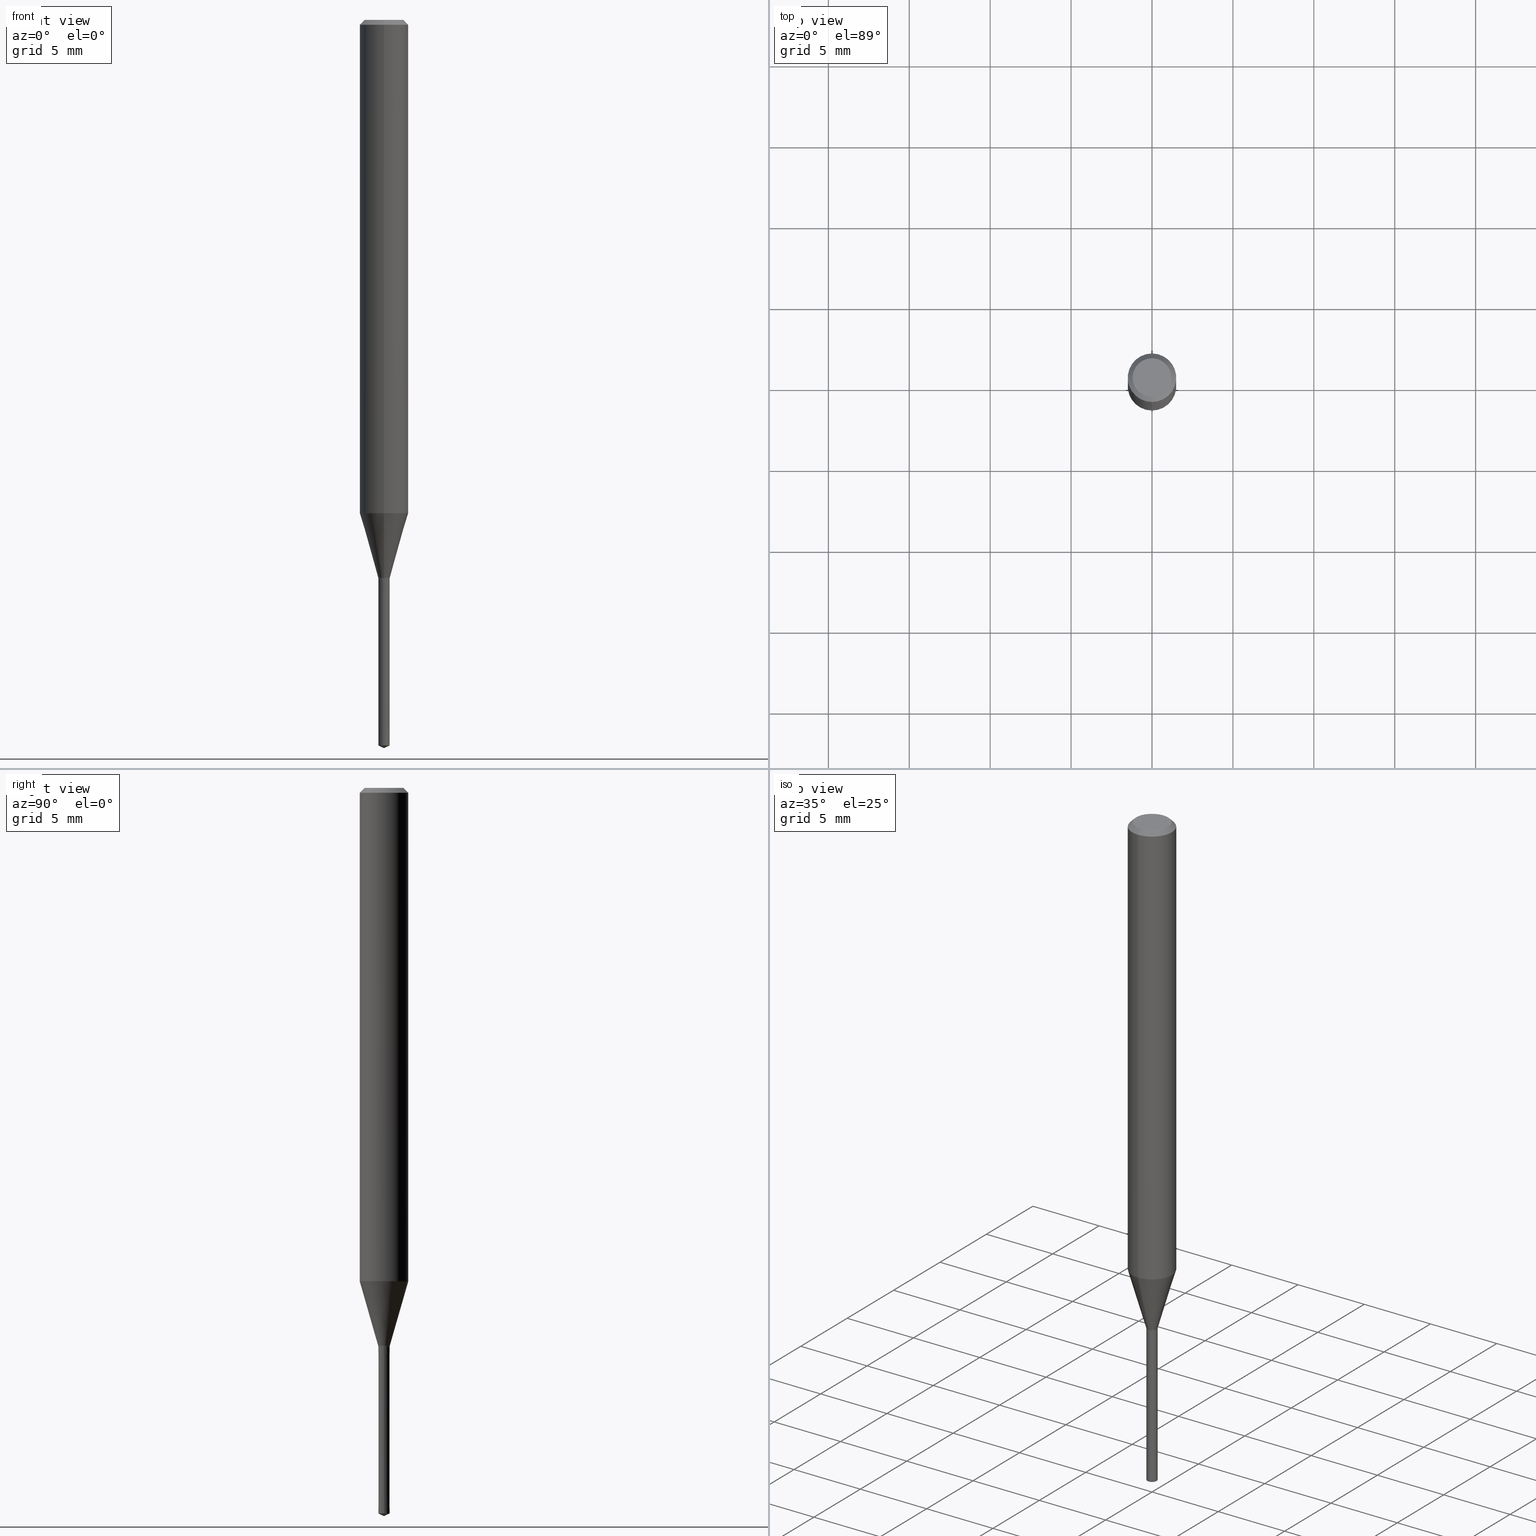
[diagram: canonical four-view strip — front | top / right | iso, engineering-drawing reading convention]
A machine part, canonical four-view strip (front | top / right | iso — engineering-drawing reading convention). The complete STEP part file that produces these views, byte-faithful:
ISO-10303-21;
HEADER;
FILE_DESCRIPTION(('no description'),'unknown implementation level');
FILE_NAME('UTDLX2070-105-Huellk.stp','  ',('CIMSOURCE GmbH'),('CADClick - KiM GmbH - www.kimweb.de'),'unknown preprocess','ACIS','unknown authorization');
FILE_SCHEMA(('automotive_design'));
ENDSEC;
DATA;
#1=MECHANICAL_DESIGN_GEOMETRIC_PRESENTATION_REPRESENTATION(' ',(#14,#15,#16,#17,#18,#19,#20,#21,#22,#23,#24,#25,#26,#27,#28,#29,#30,#31,#32,#33,#34,#35,#36,#37,#38,#39,#40,#41,#42,#43,#44,#45,#46,#47,#48,#49,#50,#51,#52,#53,#54,#55,#56,#57,#58,#59,#60,#61,#62,#63,#64,#65,#66,#67,#68,#69,#70,#71),#10);
#2=PRODUCT_DEFINITION_CONTEXT('',#72,'design');
#3=APPLICATION_PROTOCOL_DEFINITION('INTERNATIONAL STANDARD','automotive_design',1994,#72);
#4=PRODUCT_CATEGORY_RELATIONSHIP('NONE','NONE',#73,#74);
#5=SHAPE_DEFINITION_REPRESENTATION(#75,#76);
#6=PRODUCT_DEFINITION_CONTEXT('',#77,'design');
#7=APPLICATION_PROTOCOL_DEFINITION('INTERNATIONAL STANDARD','automotive_design',1994,#77);
#8=PRODUCT_CATEGORY_RELATIONSHIP('NONE','NONE',#78,#79);
#9=SHAPE_DEFINITION_REPRESENTATION(#80,#81);
#10= (GEOMETRIC_REPRESENTATION_CONTEXT(3)GLOBAL_UNCERTAINTY_ASSIGNED_CONTEXT((#84))GLOBAL_UNIT_ASSIGNED_CONTEXT((#86,#87,#88))REPRESENTATION_CONTEXT('NONE','WORKSPACE'));
#14=STYLED_ITEM('',(#90),#91);
#15=STYLED_ITEM('',(#92),#93);
#16=STYLED_ITEM('',(#94),#95);
#17=STYLED_ITEM('',(#96),#97);
#18=STYLED_ITEM('',(#98),#99);
#19=STYLED_ITEM('',(#100),#101);
#20=STYLED_ITEM('',(#102),#103);
#21=STYLED_ITEM('',(#104),#105);
#22=STYLED_ITEM('',(#106),#107);
#23=STYLED_ITEM('',(#108),#109);
#24=STYLED_ITEM('',(#110),#111);
#25=STYLED_ITEM('',(#112),#113);
#26=STYLED_ITEM('',(#114),#115);
#27=STYLED_ITEM('',(#116),#117);
#28=STYLED_ITEM('',(#118),#119);
#29=STYLED_ITEM('',(#120),#121);
#30=STYLED_ITEM('',(#122),#123);
#31=STYLED_ITEM('',(#124),#125);
#32=STYLED_ITEM('',(#126),#127);
#33=STYLED_ITEM('',(#128),#129);
#34=STYLED_ITEM('',(#130),#131);
#35=STYLED_ITEM('',(#132),#133);
#36=STYLED_ITEM('',(#134),#135);
#37=STYLED_ITEM('',(#136),#137);
#38=STYLED_ITEM('',(#138),#139);
#39=STYLED_ITEM('',(#140),#141);
#40=STYLED_ITEM('',(#142),#143);
#41=STYLED_ITEM('',(#144),#145);
#42=STYLED_ITEM('',(#146),#147);
#43=STYLED_ITEM('',(#148),#149);
#44=STYLED_ITEM('',(#150),#151);
#45=STYLED_ITEM('',(#152),#153);
#46=STYLED_ITEM('',(#154),#155);
#47=STYLED_ITEM('',(#156),#157);
#48=STYLED_ITEM('',(#158),#159);
#49=STYLED_ITEM('',(#160),#161);
#50=STYLED_ITEM('',(#162),#163);
#51=STYLED_ITEM('',(#164),#165);
#52=STYLED_ITEM('',(#166),#167);
#53=STYLED_ITEM('',(#168),#169);
#54=STYLED_ITEM('',(#170),#171);
#55=STYLED_ITEM('',(#172),#173);
#56=STYLED_ITEM('',(#174),#175);
#57=STYLED_ITEM('',(#176),#177);
#58=STYLED_ITEM('',(#178),#179);
#59=STYLED_ITEM('',(#180),#181);
#60=STYLED_ITEM('',(#182),#183);
#61=STYLED_ITEM('',(#184),#185);
#62=STYLED_ITEM('',(#186),#187);
#63=STYLED_ITEM('',(#188),#189);
#64=STYLED_ITEM('',(#190),#191);
#65=STYLED_ITEM('',(#192),#193);
#66=STYLED_ITEM('',(#194),#195);
#67=STYLED_ITEM('',(#196),#197);
#68=STYLED_ITEM('',(#198),#199);
#69=STYLED_ITEM('',(#200),#201);
#70=STYLED_ITEM('',(#202),#203);
#71=STYLED_ITEM('',(#204),#205);
#72=APPLICATION_CONTEXT(' ');
#73=PRODUCT_CATEGORY('part','NONE');
#74=PRODUCT_RELATED_PRODUCT_CATEGORY('detail',' ',(#206));
#75=PRODUCT_DEFINITION_SHAPE('NONE','NONE',#207);
#76=ADVANCED_BREP_SHAPE_REPRESENTATION('1',(#205,#208),#10);
#77=APPLICATION_CONTEXT(' ');
#78=PRODUCT_CATEGORY('part','NONE');
#79=PRODUCT_RELATED_PRODUCT_CATEGORY('detail',' ',(#209));
#80=PRODUCT_DEFINITION_SHAPE('NONE','NONE',#210);
#81=ADVANCED_BREP_SHAPE_REPRESENTATION('2',(#99,#211),#10);
#84=UNCERTAINTY_MEASURE_WITH_UNIT(LENGTH_MEASURE(1.0E-006),#86,'','');
#86= (CONVERSION_BASED_UNIT('MILLIMETRE',#214)LENGTH_UNIT()NAMED_UNIT(#217));
#87= (NAMED_UNIT(#219)PLANE_ANGLE_UNIT()SI_UNIT($,.RADIAN.));
#88= (NAMED_UNIT(#219)SOLID_ANGLE_UNIT()SI_UNIT($,.STERADIAN.));
#90=PRESENTATION_STYLE_ASSIGNMENT((#225));
#91=VERTEX_POINT('',#226);
#92=PRESENTATION_STYLE_ASSIGNMENT((#227));
#93=EDGE_CURVE('',#203,#95,#228,.T.);
#94=PRESENTATION_STYLE_ASSIGNMENT((#229));
#95=VERTEX_POINT('',#230);
#96=PRESENTATION_STYLE_ASSIGNMENT((#231));
#97=ADVANCED_FACE('',(#232),#233,.T.);
#98=PRESENTATION_STYLE_ASSIGNMENT((#234));
#99=MANIFOLD_SOLID_BREP('2',#235);
#100=PRESENTATION_STYLE_ASSIGNMENT((#236));
#101=EDGE_CURVE('',#143,#167,#237,.T.);
#102=PRESENTATION_STYLE_ASSIGNMENT((#238));
#103=VERTEX_POINT('',#239);
#104=PRESENTATION_STYLE_ASSIGNMENT((#240));
#105=ADVANCED_FACE('',(#241),#242,.T.);
#106=PRESENTATION_STYLE_ASSIGNMENT((#243));
#107=ADVANCED_FACE('',(#244),#245,.T.);
#108=PRESENTATION_STYLE_ASSIGNMENT((#246));
#109=ADVANCED_FACE('',(#247),#248,.T.);
#110=PRESENTATION_STYLE_ASSIGNMENT((#249));
#111=VERTEX_POINT('',#250);
#112=PRESENTATION_STYLE_ASSIGNMENT((#251));
#113=EDGE_CURVE('',#95,#203,#252,.T.);
#114=PRESENTATION_STYLE_ASSIGNMENT((#253));
#115=ADVANCED_FACE('',(#254),#255,.T.);
#116=PRESENTATION_STYLE_ASSIGNMENT((#256));
#117=EDGE_CURVE('',#103,#181,#257,.T.);
#118=PRESENTATION_STYLE_ASSIGNMENT((#258));
#119=ADVANCED_FACE('',(#259),#260,.T.);
#120=PRESENTATION_STYLE_ASSIGNMENT((#261));
#121=EDGE_CURVE('',#103,#183,#262,.T.);
#122=PRESENTATION_STYLE_ASSIGNMENT((#263));
#123=EDGE_CURVE('',#183,#103,#264,.T.);
#124=PRESENTATION_STYLE_ASSIGNMENT((#265));
#125=EDGE_CURVE('',#179,#155,#266,.T.);
#126=PRESENTATION_STYLE_ASSIGNMENT((#267));
#127=EDGE_CURVE('',#181,#165,#268,.T.);
#128=PRESENTATION_STYLE_ASSIGNMENT((#269));
#129=EDGE_CURVE('',#203,#179,#270,.T.);
#130=PRESENTATION_STYLE_ASSIGNMENT((#271));
#131=ADVANCED_FACE('',(#272),#273,.T.);
#132=PRESENTATION_STYLE_ASSIGNMENT((#274));
#133=VERTEX_POINT('',#275);
#134=PRESENTATION_STYLE_ASSIGNMENT((#276));
#135=EDGE_CURVE('',#173,#111,#277,.T.);
#136=PRESENTATION_STYLE_ASSIGNMENT((#278));
#137=EDGE_CURVE('',#111,#143,#279,.T.);
#138=PRESENTATION_STYLE_ASSIGNMENT((#280));
#139=ADVANCED_FACE('',(#281),#282,.T.);
#140=PRESENTATION_STYLE_ASSIGNMENT((#283));
#141=EDGE_CURVE('',#167,#173,#284,.T.);
#142=PRESENTATION_STYLE_ASSIGNMENT((#285));
#143=VERTEX_POINT('',#286);
#144=PRESENTATION_STYLE_ASSIGNMENT((#287));
#145=ADVANCED_FACE('',(#288),#289,.T.);
#146=PRESENTATION_STYLE_ASSIGNMENT((#290));
#147=EDGE_CURVE('',#133,#91,#291,.T.);
#148=PRESENTATION_STYLE_ASSIGNMENT((#292));
#149=EDGE_CURVE('',#165,#183,#293,.T.);
#150=PRESENTATION_STYLE_ASSIGNMENT((#294));
#151=EDGE_CURVE('',#177,#155,#295,.T.);
#152=PRESENTATION_STYLE_ASSIGNMENT((#296));
#153=ADVANCED_FACE('',(#297),#298,.T.);
#154=PRESENTATION_STYLE_ASSIGNMENT((#299));
#155=VERTEX_POINT('',#300);
#156=PRESENTATION_STYLE_ASSIGNMENT((#301));
#157=EDGE_CURVE('',#155,#179,#302,.T.);
#158=PRESENTATION_STYLE_ASSIGNMENT((#303));
#159=EDGE_CURVE('',#167,#165,#304,.T.);
#160=PRESENTATION_STYLE_ASSIGNMENT((#305));
#161=ADVANCED_FACE('',(#306),#307,.T.);
#162=PRESENTATION_STYLE_ASSIGNMENT((#308));
#163=ADVANCED_FACE('',(#309),#310,.T.);
#164=PRESENTATION_STYLE_ASSIGNMENT((#311));
#165=VERTEX_POINT('',#312);
#166=PRESENTATION_STYLE_ASSIGNMENT((#313));
#167=VERTEX_POINT('',#314);
#168=PRESENTATION_STYLE_ASSIGNMENT((#315));
#169=EDGE_CURVE('',#91,#133,#316,.T.);
#170=PRESENTATION_STYLE_ASSIGNMENT((#317));
#171=EDGE_CURVE('',#173,#167,#318,.T.);
#172=PRESENTATION_STYLE_ASSIGNMENT((#319));
#173=VERTEX_POINT('',#320);
#174=PRESENTATION_STYLE_ASSIGNMENT((#321));
#175=EDGE_CURVE('',#143,#111,#322,.T.);
#176=PRESENTATION_STYLE_ASSIGNMENT((#323));
#177=VERTEX_POINT('',#324);
#178=PRESENTATION_STYLE_ASSIGNMENT((#325));
#179=VERTEX_POINT('',#326);
#180=PRESENTATION_STYLE_ASSIGNMENT((#327));
#181=VERTEX_POINT('',#328);
#182=PRESENTATION_STYLE_ASSIGNMENT((#329));
#183=VERTEX_POINT('',#330);
#184=PRESENTATION_STYLE_ASSIGNMENT((#331));
#185=EDGE_CURVE('',#155,#95,#332,.T.);
#186=PRESENTATION_STYLE_ASSIGNMENT((#333));
#187=ADVANCED_FACE('',(#334),#335,.T.);
#188=PRESENTATION_STYLE_ASSIGNMENT((#336));
#189=EDGE_CURVE('',#133,#143,#337,.T.);
#190=PRESENTATION_STYLE_ASSIGNMENT((#338));
#191=ADVANCED_FACE('',(#339),#340,.T.);
#192=PRESENTATION_STYLE_ASSIGNMENT((#341));
#193=EDGE_CURVE('',#179,#177,#342,.T.);
#194=PRESENTATION_STYLE_ASSIGNMENT((#343));
#195=EDGE_CURVE('',#111,#91,#344,.T.);
#196=PRESENTATION_STYLE_ASSIGNMENT((#345));
#197=EDGE_CURVE('',#165,#181,#346,.T.);
#198=PRESENTATION_STYLE_ASSIGNMENT((#347));
#199=ADVANCED_FACE('',(#348),#349,.T.);
#200=PRESENTATION_STYLE_ASSIGNMENT((#350));
#201=EDGE_CURVE('',#181,#173,#351,.T.);
#202=PRESENTATION_STYLE_ASSIGNMENT((#352));
#203=VERTEX_POINT('',#353);
#204=PRESENTATION_STYLE_ASSIGNMENT((#354));
#205=MANIFOLD_SOLID_BREP('1',#355);
#206=PRODUCT('1','1','PART-1-DESC',(#356));
#207=PRODUCT_DEFINITION('NONE','NONE',#357,#2);
#208=AXIS2_PLACEMENT_3D('',#358,#359,#360);
#209=PRODUCT('2','2','PART-2-DESC',(#361));
#210=PRODUCT_DEFINITION('NONE','NONE',#362,#6);
#211=AXIS2_PLACEMENT_3D('',#363,#364,#365);
#214=LENGTH_MEASURE_WITH_UNIT(LENGTH_MEASURE(1.0),#366);
#217=DIMENSIONAL_EXPONENTS(1.0,0.0,0.0,0.0,0.0,0.0,0.0);
#219=DIMENSIONAL_EXPONENTS(0.0,0.0,0.0,0.0,0.0,0.0,0.0);
#225=POINT_STYLE(' ',#367,POSITIVE_LENGTH_MEASURE(1.0E-006),#368);
#226=CARTESIAN_POINT('',(0.0,0.3505,-34.5));
#227=CURVE_STYLE('',#369,POSITIVE_LENGTH_MEASURE(1.0E-006),#370);
#228=CIRCLE('',#371,0.351);
#229=POINT_STYLE(' ',#372,POSITIVE_LENGTH_MEASURE(1.0E-006),#373);
#230=CARTESIAN_POINT('',(0.351,4.29836830191654E-017,-34.5));
#231=SURFACE_STYLE_USAGE(.BOTH.,#374);
#232=FACE_OUTER_BOUND('',#375,.T.);
#233=CONICAL_SURFACE('',#376,0.175,1.13446401462768);
#234=SURFACE_STYLE_USAGE(.BOTH.,#377);
#235=CLOSED_SHELL('',(#187,#145,#191,#199,#97));
#236=CURVE_STYLE('',#378,POSITIVE_LENGTH_MEASURE(1.0E-006),#379);
#237=LINE('',#380,#381);
#238=POINT_STYLE(' ',#382,POSITIVE_LENGTH_MEASURE(1.0E-006),#383);
#239=CARTESIAN_POINT('',(0.0,1.2,0.0));
#240=SURFACE_STYLE_USAGE(.BOTH.,#384);
#241=FACE_OUTER_BOUND('',#385,.T.);
#242=CYLINDRICAL_SURFACE('',#386,1.5);
#243=SURFACE_STYLE_USAGE(.BOTH.,#387);
#244=FACE_OUTER_BOUND('',#388,.T.);
#245=PLANE('',#389);
#246=SURFACE_STYLE_USAGE(.BOTH.,#390);
#247=FACE_OUTER_BOUND('',#391,.T.);
#248=CONICAL_SURFACE('',#392,0.925,0.279278622561771);
#249=POINT_STYLE(' ',#393,POSITIVE_LENGTH_MEASURE(1.0E-006),#394);
#250=CARTESIAN_POINT('',(0.0,0.35,-34.4991339745962));
#251=CURVE_STYLE('',#395,POSITIVE_LENGTH_MEASURE(1.0E-006),#396);
#252=CIRCLE('',#397,0.351);
#253=SURFACE_STYLE_USAGE(.BOTH.,#398);
#254=FACE_OUTER_BOUND('',#399,.T.);
#255=CONICAL_SURFACE('',#400,0.35025,0.523598775598408);
#256=CURVE_STYLE('',#401,POSITIVE_LENGTH_MEASURE(1.0E-006),#402);
#257=LINE('',#403,#404);
#258=SURFACE_STYLE_USAGE(.BOTH.,#405);
#259=FACE_OUTER_BOUND('',#406,.T.);
#260=CYLINDRICAL_SURFACE('',#407,1.5);
#261=CURVE_STYLE('',#408,POSITIVE_LENGTH_MEASURE(1.0E-006),#409);
#262=CIRCLE('',#410,1.2);
#263=CURVE_STYLE('',#411,POSITIVE_LENGTH_MEASURE(1.0E-006),#412);
#264=CIRCLE('',#413,1.2);
#265=CURVE_STYLE('',#414,POSITIVE_LENGTH_MEASURE(1.0E-006),#415);
#266=CIRCLE('',#416,0.35);
#267=CURVE_STYLE('',#417,POSITIVE_LENGTH_MEASURE(1.0E-006),#418);
#268=CIRCLE('',#419,1.5);
#269=CURVE_STYLE('',#420,POSITIVE_LENGTH_MEASURE(1.0E-006),#421);
#270=LINE('',#422,#423);
#271=SURFACE_STYLE_USAGE(.BOTH.,#424);
#272=FACE_OUTER_BOUND('',#425,.T.);
#273=CONICAL_SURFACE('',#426,0.35025,0.523598775598408);
#274=POINT_STYLE(' ',#427,POSITIVE_LENGTH_MEASURE(1.0E-006),#428);
#275=CARTESIAN_POINT('',(4.29224527014743E-017,-0.3505,-34.5));
#276=CURVE_STYLE('',#429,POSITIVE_LENGTH_MEASURE(1.0E-006),#430);
#277=LINE('',#431,#432);
#278=CURVE_STYLE('',#433,POSITIVE_LENGTH_MEASURE(1.0E-006),#434);
#279=CIRCLE('',#435,0.35);
#280=SURFACE_STYLE_USAGE(.BOTH.,#436);
#281=FACE_OUTER_BOUND('',#437,.T.);
#282=CONICAL_SURFACE('',#438,0.925,0.279278622561771);
#283=CURVE_STYLE('',#439,POSITIVE_LENGTH_MEASURE(1.0E-006),#440);
#284=CIRCLE('',#441,1.5);
#285=POINT_STYLE(' ',#442,POSITIVE_LENGTH_MEASURE(1.0E-006),#443);
#286=CARTESIAN_POINT('',(4.28612223837832E-017,-0.35,-34.4991339745962));
#287=SURFACE_STYLE_USAGE(.BOTH.,#444);
#288=FACE_OUTER_BOUND('',#445,.T.);
#289=CONICAL_SURFACE('',#446,0.3505,9.67418098306479E-005);
#290=CURVE_STYLE('',#447,POSITIVE_LENGTH_MEASURE(1.0E-006),#448);
#291=CIRCLE('',#449,0.3505);
#292=CURVE_STYLE('',#450,POSITIVE_LENGTH_MEASURE(1.0E-006),#451);
#293=LINE('',#452,#453);
#294=CURVE_STYLE('',#454,POSITIVE_LENGTH_MEASURE(1.0E-006),#455);
#295=LINE('',#456,#457);
#296=SURFACE_STYLE_USAGE(.BOTH.,#458);
#297=FACE_OUTER_BOUND('',#459,.T.);
#298=CONICAL_SURFACE('',#460,1.35,0.785398163397447);
#299=POINT_STYLE(' ',#461,POSITIVE_LENGTH_MEASURE(1.0E-006),#462);
#300=CARTESIAN_POINT('',(0.35,4.28612223837832E-017,-44.83679232));
#301=CURVE_STYLE('',#463,POSITIVE_LENGTH_MEASURE(1.0E-006),#464);
#302=CIRCLE('',#465,0.35);
#303=CURVE_STYLE('',#466,POSITIVE_LENGTH_MEASURE(1.0E-006),#467);
#304=LINE('',#468,#469);
#305=SURFACE_STYLE_USAGE(.BOTH.,#470);
#306=FACE_OUTER_BOUND('',#471,.T.);
#307=CONICAL_SURFACE('',#472,1.35,0.785398163397447);
#308=SURFACE_STYLE_USAGE(.BOTH.,#473);
#309=FACE_OUTER_BOUND('',#474,.T.);
#310=PLANE('',#475);
#311=POINT_STYLE(' ',#476,POSITIVE_LENGTH_MEASURE(1.0E-006),#477);
#312=CARTESIAN_POINT('',(1.83690953073357E-016,-1.5,-0.300000000000001));
#313=POINT_STYLE(' ',#478,POSITIVE_LENGTH_MEASURE(1.0E-006),#479);
#314=CARTESIAN_POINT('',(1.83690953073357E-016,-1.5,-30.489));
#315=CURVE_STYLE('',#480,POSITIVE_LENGTH_MEASURE(1.0E-006),#481);
#316=CIRCLE('',#482,0.3505);
#317=CURVE_STYLE('',#483,POSITIVE_LENGTH_MEASURE(1.0E-006),#484);
#318=CIRCLE('',#485,1.5);
#319=POINT_STYLE(' ',#486,POSITIVE_LENGTH_MEASURE(1.0E-006),#487);
#320=CARTESIAN_POINT('',(0.0,1.5,-30.489));
#321=CURVE_STYLE('',#488,POSITIVE_LENGTH_MEASURE(1.0E-006),#489);
#322=CIRCLE('',#490,0.35);
#323=POINT_STYLE(' ',#491,POSITIVE_LENGTH_MEASURE(1.0E-006),#492);
#324=CARTESIAN_POINT('',(0.0,0.0,-45.0));
#325=POINT_STYLE(' ',#493,POSITIVE_LENGTH_MEASURE(1.0E-006),#494);
#326=CARTESIAN_POINT('',(-0.35,0.0,-44.83679232));
#327=POINT_STYLE(' ',#495,POSITIVE_LENGTH_MEASURE(1.0E-006),#496);
#328=CARTESIAN_POINT('',(0.0,1.5,-0.300000000000001));
#329=POINT_STYLE(' ',#497,POSITIVE_LENGTH_MEASURE(1.0E-006),#498);
#330=CARTESIAN_POINT('',(1.46952762458685E-016,-1.2,0.0));
#331=CURVE_STYLE('',#499,POSITIVE_LENGTH_MEASURE(1.0E-006),#500);
#332=LINE('',#501,#502);
#333=SURFACE_STYLE_USAGE(.BOTH.,#503);
#334=FACE_OUTER_BOUND('',#504,.T.);
#335=CONICAL_SURFACE('',#505,0.175,1.13446401462768);
#336=CURVE_STYLE('',#506,POSITIVE_LENGTH_MEASURE(1.0E-006),#507);
#337=LINE('',#508,#509);
#338=SURFACE_STYLE_USAGE(.BOTH.,#510);
#339=FACE_OUTER_BOUND('',#511,.T.);
#340=PLANE('',#512);
#341=CURVE_STYLE('',#513,POSITIVE_LENGTH_MEASURE(1.0E-006),#514);
#342=LINE('',#515,#516);
#343=CURVE_STYLE('',#517,POSITIVE_LENGTH_MEASURE(1.0E-006),#518);
#344=LINE('',#519,#520);
#345=CURVE_STYLE('',#521,POSITIVE_LENGTH_MEASURE(1.0E-006),#522);
#346=CIRCLE('',#523,1.5);
#347=SURFACE_STYLE_USAGE(.BOTH.,#524);
#348=FACE_OUTER_BOUND('',#525,.T.);
#349=CONICAL_SURFACE('',#526,0.3505,9.67418098306479E-005);
#350=CURVE_STYLE('',#527,POSITIVE_LENGTH_MEASURE(1.0E-006),#528);
#351=LINE('',#529,#530);
#352=POINT_STYLE(' ',#531,POSITIVE_LENGTH_MEASURE(1.0E-006),#532);
#353=CARTESIAN_POINT('',(-0.351,0.0,-34.5));
#354=SURFACE_STYLE_USAGE(.BOTH.,#533);
#355=CLOSED_SHELL('',(#115,#139,#119,#153,#107,#161,#105,#109,#131,#163));
#356=PRODUCT_CONTEXT('',#72,'mechanical');
#357=PRODUCT_DEFINITION_FORMATION_WITH_SPECIFIED_SOURCE(' ','NONE',#206,.NOT_KNOWN.);
#358=CARTESIAN_POINT('',(0.0,0.0,0.0));
#359=DIRECTION('',(0.0,0.0,1.0));
#360=DIRECTION('',(1.0,0.0,0.0));
#361=PRODUCT_CONTEXT('',#77,'mechanical');
#362=PRODUCT_DEFINITION_FORMATION_WITH_SPECIFIED_SOURCE(' ','NONE',#209,.NOT_KNOWN.);
#363=CARTESIAN_POINT('',(0.0,0.0,0.0));
#364=DIRECTION('',(0.0,0.0,1.0));
#365=DIRECTION('',(1.0,0.0,0.0));
#366= (NAMED_UNIT(#217)LENGTH_UNIT()SI_UNIT(.MILLI.,.METRE.));
#367=PRE_DEFINED_MARKER('');
#368=COLOUR_RGB('',0.498039215803146,0.498039215803146,0.498039215803146);
#369=DRAUGHTING_PRE_DEFINED_CURVE_FONT('continuous');
#370=COLOUR_RGB('',0.800000011920929,0.800000011920929,0.800000011920929);
#371=AXIS2_PLACEMENT_3D('',#535,#536,#537);
#372=PRE_DEFINED_MARKER('');
#373=COLOUR_RGB('',0.800000011920929,0.800000011920929,0.800000011920929);
#374=SURFACE_SIDE_STYLE('',(#538));
#375=EDGE_LOOP('',(#539,#540,#541));
#376=AXIS2_PLACEMENT_3D('',#542,#543,#544);
#377=SURFACE_SIDE_STYLE('',(#545));
#378=DRAUGHTING_PRE_DEFINED_CURVE_FONT('continuous');
#379=COLOUR_RGB('',0.498039215803146,0.498039215803146,0.498039215803146);
#380=CARTESIAN_POINT('',(1.1327608772857E-016,-0.925,-32.4940669872981));
#381=VECTOR('',#546,1.0);
#382=PRE_DEFINED_MARKER('');
#383=COLOUR_RGB('',0.498039215803146,0.498039215803146,0.498039215803146);
#384=SURFACE_SIDE_STYLE('',(#547));
#385=EDGE_LOOP('',(#548,#549,#550,#551));
#386=AXIS2_PLACEMENT_3D('',#552,#553,#554);
#387=SURFACE_SIDE_STYLE('',(#555));
#388=EDGE_LOOP('',(#556,#557));
#389=AXIS2_PLACEMENT_3D('',#558,#559,#560);
#390=SURFACE_SIDE_STYLE('',(#561));
#391=EDGE_LOOP('',(#562,#563,#564,#565));
#392=AXIS2_PLACEMENT_3D('',#566,#567,#568);
#393=PRE_DEFINED_MARKER('');
#394=COLOUR_RGB('',0.498039215803146,0.498039215803146,0.498039215803146);
#395=DRAUGHTING_PRE_DEFINED_CURVE_FONT('continuous');
#396=COLOUR_RGB('',0.800000011920929,0.800000011920929,0.800000011920929);
#397=AXIS2_PLACEMENT_3D('',#569,#570,#571);
#398=SURFACE_SIDE_STYLE('',(#572));
#399=EDGE_LOOP('',(#573,#574,#575,#576));
#400=AXIS2_PLACEMENT_3D('',#577,#578,#579);
#401=DRAUGHTING_PRE_DEFINED_CURVE_FONT('continuous');
#402=COLOUR_RGB('',0.498039215803146,0.498039215803146,0.498039215803146);
#403=CARTESIAN_POINT('',(-1.65321857766021E-016,1.35,-0.149999999999999));
#404=VECTOR('',#580,1.0);
#405=SURFACE_SIDE_STYLE('',(#581));
#406=EDGE_LOOP('',(#582,#583,#584,#585));
#407=AXIS2_PLACEMENT_3D('',#586,#587,#588);
#408=DRAUGHTING_PRE_DEFINED_CURVE_FONT('continuous');
#409=COLOUR_RGB('',0.498039215803146,0.498039215803146,0.498039215803146);
#410=AXIS2_PLACEMENT_3D('',#589,#590,#591);
#411=DRAUGHTING_PRE_DEFINED_CURVE_FONT('continuous');
#412=COLOUR_RGB('',0.498039215803146,0.498039215803146,0.498039215803146);
#413=AXIS2_PLACEMENT_3D('',#592,#593,#594);
#414=DRAUGHTING_PRE_DEFINED_CURVE_FONT('continuous');
#415=COLOUR_RGB('',0.800000011920929,0.800000011920929,0.800000011920929);
#416=AXIS2_PLACEMENT_3D('',#595,#596,#597);
#417=DRAUGHTING_PRE_DEFINED_CURVE_FONT('continuous');
#418=COLOUR_RGB('',0.498039215803146,0.498039215803146,0.498039215803146);
#419=AXIS2_PLACEMENT_3D('',#598,#599,#600);
#420=DRAUGHTING_PRE_DEFINED_CURVE_FONT('continuous');
#421=COLOUR_RGB('',0.800000011920929,0.800000011920929,0.800000011920929);
#422=CARTESIAN_POINT('',(-0.3505,-4.29224527014743E-017,-39.66839616));
#423=VECTOR('',#601,1.0);
#424=SURFACE_SIDE_STYLE('',(#602));
#425=EDGE_LOOP('',(#603,#604,#605,#606));
#426=AXIS2_PLACEMENT_3D('',#607,#608,#609);
#427=PRE_DEFINED_MARKER('');
#428=COLOUR_RGB('',0.498039215803146,0.498039215803146,0.498039215803146);
#429=DRAUGHTING_PRE_DEFINED_CURVE_FONT('continuous');
#430=COLOUR_RGB('',0.498039215803146,0.498039215803146,0.498039215803146);
#431=CARTESIAN_POINT('',(-1.1327608772857E-016,0.925,-32.4940669872981));
#432=VECTOR('',#610,1.0);
#433=DRAUGHTING_PRE_DEFINED_CURVE_FONT('continuous');
#434=COLOUR_RGB('',0.498039215803146,0.498039215803146,0.498039215803146);
#435=AXIS2_PLACEMENT_3D('',#611,#612,#613);
#436=SURFACE_SIDE_STYLE('',(#614));
#437=EDGE_LOOP('',(#615,#616,#617,#618));
#438=AXIS2_PLACEMENT_3D('',#619,#620,#621);
#439=DRAUGHTING_PRE_DEFINED_CURVE_FONT('continuous');
#440=COLOUR_RGB('',0.498039215803146,0.498039215803146,0.498039215803146);
#441=AXIS2_PLACEMENT_3D('',#622,#623,#624);
#442=PRE_DEFINED_MARKER('');
#443=COLOUR_RGB('',0.498039215803146,0.498039215803146,0.498039215803146);
#444=SURFACE_SIDE_STYLE('',(#625));
#445=EDGE_LOOP('',(#626,#627,#628,#629));
#446=AXIS2_PLACEMENT_3D('',#630,#631,#632);
#447=DRAUGHTING_PRE_DEFINED_CURVE_FONT('continuous');
#448=COLOUR_RGB('',0.498039215803146,0.498039215803146,0.498039215803146);
#449=AXIS2_PLACEMENT_3D('',#633,#634,#635);
#450=DRAUGHTING_PRE_DEFINED_CURVE_FONT('continuous');
#451=COLOUR_RGB('',0.498039215803146,0.498039215803146,0.498039215803146);
#452=CARTESIAN_POINT('',(1.65321857766021E-016,-1.35,-0.149999999999999));
#453=VECTOR('',#636,1.0);
#454=DRAUGHTING_PRE_DEFINED_CURVE_FONT('continuous');
#455=COLOUR_RGB('',0.800000011920929,0.800000011920929,0.800000011920929);
#456=CARTESIAN_POINT('',(0.175,2.14306111918916E-017,-44.91839616));
#457=VECTOR('',#637,1.0);
#458=SURFACE_SIDE_STYLE('',(#638));
#459=EDGE_LOOP('',(#639,#640,#641,#642));
#460=AXIS2_PLACEMENT_3D('',#643,#644,#645);
#461=PRE_DEFINED_MARKER('');
#462=COLOUR_RGB('',0.800000011920929,0.800000011920929,0.800000011920929);
#463=DRAUGHTING_PRE_DEFINED_CURVE_FONT('continuous');
#464=COLOUR_RGB('',0.800000011920929,0.800000011920929,0.800000011920929);
#465=AXIS2_PLACEMENT_3D('',#646,#647,#648);
#466=DRAUGHTING_PRE_DEFINED_CURVE_FONT('continuous');
#467=COLOUR_RGB('',0.498039215803146,0.498039215803146,0.498039215803146);
#468=CARTESIAN_POINT('',(1.83690953073357E-016,-1.5,-15.3945));
#469=VECTOR('',#649,1.0);
#470=SURFACE_SIDE_STYLE('',(#650));
#471=EDGE_LOOP('',(#651,#652,#653,#654));
#472=AXIS2_PLACEMENT_3D('',#655,#656,#657);
#473=SURFACE_SIDE_STYLE('',(#658));
#474=EDGE_LOOP('',(#659,#660));
#475=AXIS2_PLACEMENT_3D('',#661,#662,#663);
#476=PRE_DEFINED_MARKER('');
#477=COLOUR_RGB('',0.498039215803146,0.498039215803146,0.498039215803146);
#478=PRE_DEFINED_MARKER('');
#479=COLOUR_RGB('',0.498039215803146,0.498039215803146,0.498039215803146);
#480=DRAUGHTING_PRE_DEFINED_CURVE_FONT('continuous');
#481=COLOUR_RGB('',0.498039215803146,0.498039215803146,0.498039215803146);
#482=AXIS2_PLACEMENT_3D('',#664,#665,#666);
#483=DRAUGHTING_PRE_DEFINED_CURVE_FONT('continuous');
#484=COLOUR_RGB('',0.498039215803146,0.498039215803146,0.498039215803146);
#485=AXIS2_PLACEMENT_3D('',#667,#668,#669);
#486=PRE_DEFINED_MARKER('');
#487=COLOUR_RGB('',0.498039215803146,0.498039215803146,0.498039215803146);
#488=DRAUGHTING_PRE_DEFINED_CURVE_FONT('continuous');
#489=COLOUR_RGB('',0.498039215803146,0.498039215803146,0.498039215803146);
#490=AXIS2_PLACEMENT_3D('',#670,#671,#672);
#491=PRE_DEFINED_MARKER('');
#492=COLOUR_RGB('',0.800000011920929,0.800000011920929,0.800000011920929);
#493=PRE_DEFINED_MARKER('');
#494=COLOUR_RGB('',0.800000011920929,0.800000011920929,0.800000011920929);
#495=PRE_DEFINED_MARKER('');
#496=COLOUR_RGB('',0.498039215803146,0.498039215803146,0.498039215803146);
#497=PRE_DEFINED_MARKER('');
#498=COLOUR_RGB('',0.498039215803146,0.498039215803146,0.498039215803146);
#499=DRAUGHTING_PRE_DEFINED_CURVE_FONT('continuous');
#500=COLOUR_RGB('',0.800000011920929,0.800000011920929,0.800000011920929);
#501=CARTESIAN_POINT('',(0.3505,4.29224527014743E-017,-39.66839616));
#502=VECTOR('',#673,1.0);
#503=SURFACE_SIDE_STYLE('',(#674));
#504=EDGE_LOOP('',(#675,#676,#677));
#505=AXIS2_PLACEMENT_3D('',#678,#679,#680);
#506=DRAUGHTING_PRE_DEFINED_CURVE_FONT('continuous');
#507=COLOUR_RGB('',0.498039215803146,0.498039215803146,0.498039215803146);
#508=CARTESIAN_POINT('',(4.28918375426288E-017,-0.35025,-34.4995669872981));
#509=VECTOR('',#681,1.0);
#510=SURFACE_SIDE_STYLE('',(#682));
#511=EDGE_LOOP('',(#683,#684));
#512=AXIS2_PLACEMENT_3D('',#685,#686,#687);
#513=DRAUGHTING_PRE_DEFINED_CURVE_FONT('continuous');
#514=COLOUR_RGB('',0.800000011920929,0.800000011920929,0.800000011920929);
#515=CARTESIAN_POINT('',(-0.175,-2.14306111918916E-017,-44.91839616));
#516=VECTOR('',#688,1.0);
#517=DRAUGHTING_PRE_DEFINED_CURVE_FONT('continuous');
#518=COLOUR_RGB('',0.498039215803146,0.498039215803146,0.498039215803146);
#519=CARTESIAN_POINT('',(-4.28918375426288E-017,0.35025,-34.4995669872981));
#520=VECTOR('',#689,1.0);
#521=DRAUGHTING_PRE_DEFINED_CURVE_FONT('continuous');
#522=COLOUR_RGB('',0.498039215803146,0.498039215803146,0.498039215803146);
#523=AXIS2_PLACEMENT_3D('',#690,#691,#692);
#524=SURFACE_SIDE_STYLE('',(#693));
#525=EDGE_LOOP('',(#694,#695,#696,#697));
#526=AXIS2_PLACEMENT_3D('',#698,#699,#700);
#527=DRAUGHTING_PRE_DEFINED_CURVE_FONT('continuous');
#528=COLOUR_RGB('',0.498039215803146,0.498039215803146,0.498039215803146);
#529=CARTESIAN_POINT('',(-1.83690953073357E-016,1.5,-15.3945));
#530=VECTOR('',#701,1.0);
#531=PRE_DEFINED_MARKER('');
#532=COLOUR_RGB('',0.800000011920929,0.800000011920929,0.800000011920929);
#533=SURFACE_SIDE_STYLE('',(#702));
#535=CARTESIAN_POINT('',(0.0,0.0,-34.5));
#536=DIRECTION('',(0.0,0.0,-1.0));
#537=DIRECTION('',(-1.0,0.0,0.0));
#538=SURFACE_STYLE_FILL_AREA(#703);
#539=ORIENTED_EDGE('',*,*,#151,.T.);
#540=ORIENTED_EDGE('',*,*,#157,.T.);
#541=ORIENTED_EDGE('',*,*,#193,.T.);
#542=CARTESIAN_POINT('',(0.0,0.0,-44.91839616));
#543=DIRECTION('',(-0.0,-0.0,1.0));
#544=DIRECTION('',(-1.0,0.0,0.0));
#545=SURFACE_STYLE_FILL_AREA(#704);
#546=DIRECTION('',(3.37577795527378E-017,-0.275662293008437,0.961254544963679));
#547=SURFACE_STYLE_FILL_AREA(#705);
#548=ORIENTED_EDGE('',*,*,#201,.T.);
#549=ORIENTED_EDGE('',*,*,#141,.F.);
#550=ORIENTED_EDGE('',*,*,#159,.T.);
#551=ORIENTED_EDGE('',*,*,#197,.T.);
#552=CARTESIAN_POINT('',(0.0,0.0,-15.3945));
#553=DIRECTION('',(-0.0,-0.0,1.0));
#554=DIRECTION('',(0.0,1.0,0.0));
#555=SURFACE_STYLE_FILL_AREA(#706);
#556=ORIENTED_EDGE('',*,*,#121,.F.);
#557=ORIENTED_EDGE('',*,*,#123,.F.);
#558=CARTESIAN_POINT('',(0.0,0.6,0.0));
#559=DIRECTION('',(-0.0,0.0,1.0));
#560=DIRECTION('',(0.0,-1.0,0.0));
#561=SURFACE_STYLE_FILL_AREA(#707);
#562=ORIENTED_EDGE('',*,*,#135,.T.);
#563=ORIENTED_EDGE('',*,*,#175,.F.);
#564=ORIENTED_EDGE('',*,*,#101,.T.);
#565=ORIENTED_EDGE('',*,*,#141,.T.);
#566=CARTESIAN_POINT('',(0.0,0.0,-32.4940669872981));
#567=DIRECTION('',(-0.0,-0.0,1.0));
#568=DIRECTION('',(0.0,1.0,0.0));
#569=CARTESIAN_POINT('',(0.0,0.0,-34.5));
#570=DIRECTION('',(0.0,0.0,-1.0));
#571=DIRECTION('',(-1.0,0.0,0.0));
#572=SURFACE_STYLE_FILL_AREA(#708);
#573=ORIENTED_EDGE('',*,*,#195,.F.);
#574=ORIENTED_EDGE('',*,*,#137,.T.);
#575=ORIENTED_EDGE('',*,*,#189,.F.);
#576=ORIENTED_EDGE('',*,*,#169,.F.);
#577=CARTESIAN_POINT('',(0.0,0.0,-34.4995669872981));
#578=DIRECTION('',(0.0,-0.0,-1.0));
#579=DIRECTION('',(0.0,1.0,0.0));
#580=DIRECTION('',(-8.65927457071934E-017,0.707106781186546,-0.707106781186549));
#581=SURFACE_STYLE_FILL_AREA(#709);
#582=ORIENTED_EDGE('',*,*,#201,.F.);
#583=ORIENTED_EDGE('',*,*,#127,.T.);
#584=ORIENTED_EDGE('',*,*,#159,.F.);
#585=ORIENTED_EDGE('',*,*,#171,.F.);
#586=CARTESIAN_POINT('',(0.0,0.0,-15.3945));
#587=DIRECTION('',(-0.0,-0.0,1.0));
#588=DIRECTION('',(0.0,1.0,0.0));
#589=CARTESIAN_POINT('',(0.0,0.0,0.0));
#590=DIRECTION('',(0.0,0.0,-1.0));
#591=DIRECTION('',(0.0,1.0,0.0));
#592=CARTESIAN_POINT('',(0.0,0.0,0.0));
#593=DIRECTION('',(0.0,0.0,-1.0));
#594=DIRECTION('',(0.0,1.0,0.0));
#595=CARTESIAN_POINT('',(0.0,0.0,-44.83679232));
#596=DIRECTION('',(0.0,0.0,-1.0));
#597=DIRECTION('',(-1.0,0.0,0.0));
#598=CARTESIAN_POINT('',(0.0,0.0,-0.300000000000001));
#599=DIRECTION('',(0.0,0.0,-1.0));
#600=DIRECTION('',(0.0,1.0,0.0));
#601=DIRECTION('',(9.67418096797471E-005,1.18470634814094E-020,-0.999999995320511));
#602=SURFACE_STYLE_FILL_AREA(#710);
#603=ORIENTED_EDGE('',*,*,#195,.T.);
#604=ORIENTED_EDGE('',*,*,#147,.F.);
#605=ORIENTED_EDGE('',*,*,#189,.T.);
#606=ORIENTED_EDGE('',*,*,#175,.T.);
#607=CARTESIAN_POINT('',(0.0,0.0,-34.4995669872981));
#608=DIRECTION('',(0.0,-0.0,-1.0));
#609=DIRECTION('',(0.0,1.0,0.0));
#610=DIRECTION('',(3.37577795527378E-017,-0.275662293008437,-0.961254544963679));
#611=CARTESIAN_POINT('',(0.0,0.0,-34.4991339745962));
#612=DIRECTION('',(0.0,0.0,-1.0));
#613=DIRECTION('',(0.0,1.0,0.0));
#614=SURFACE_STYLE_FILL_AREA(#711);
#615=ORIENTED_EDGE('',*,*,#135,.F.);
#616=ORIENTED_EDGE('',*,*,#171,.T.);
#617=ORIENTED_EDGE('',*,*,#101,.F.);
#618=ORIENTED_EDGE('',*,*,#137,.F.);
#619=CARTESIAN_POINT('',(0.0,0.0,-32.4940669872981));
#620=DIRECTION('',(-0.0,-0.0,1.0));
#621=DIRECTION('',(0.0,1.0,0.0));
#622=CARTESIAN_POINT('',(0.0,0.0,-30.489));
#623=DIRECTION('',(0.0,0.0,-1.0));
#624=DIRECTION('',(0.0,1.0,0.0));
#625=SURFACE_STYLE_FILL_AREA(#712);
#626=ORIENTED_EDGE('',*,*,#129,.F.);
#627=ORIENTED_EDGE('',*,*,#93,.T.);
#628=ORIENTED_EDGE('',*,*,#185,.F.);
#629=ORIENTED_EDGE('',*,*,#125,.F.);
#630=CARTESIAN_POINT('',(0.0,0.0,-39.66839616));
#631=DIRECTION('',(-0.0,-0.0,1.0));
#632=DIRECTION('',(-1.0,0.0,0.0));
#633=CARTESIAN_POINT('',(0.0,0.0,-34.5));
#634=DIRECTION('',(0.0,0.0,-1.0));
#635=DIRECTION('',(0.0,1.0,0.0));
#636=DIRECTION('',(-8.65927457071934E-017,0.707106781186546,0.707106781186549));
#637=DIRECTION('',(0.906307787388001,1.10987027495405E-016,0.422618260987224));
#638=SURFACE_STYLE_FILL_AREA(#713);
#639=ORIENTED_EDGE('',*,*,#117,.F.);
#640=ORIENTED_EDGE('',*,*,#121,.T.);
#641=ORIENTED_EDGE('',*,*,#149,.F.);
#642=ORIENTED_EDGE('',*,*,#127,.F.);
#643=CARTESIAN_POINT('',(0.0,0.0,-0.149999999999999));
#644=DIRECTION('',(0.0,-0.0,-1.0));
#645=DIRECTION('',(0.0,1.0,0.0));
#646=CARTESIAN_POINT('',(0.0,0.0,-44.83679232));
#647=DIRECTION('',(0.0,0.0,-1.0));
#648=DIRECTION('',(-1.0,0.0,0.0));
#649=DIRECTION('',(-0.0,-0.0,1.0));
#650=SURFACE_STYLE_FILL_AREA(#714);
#651=ORIENTED_EDGE('',*,*,#117,.T.);
#652=ORIENTED_EDGE('',*,*,#197,.F.);
#653=ORIENTED_EDGE('',*,*,#149,.T.);
#654=ORIENTED_EDGE('',*,*,#123,.T.);
#655=CARTESIAN_POINT('',(0.0,0.0,-0.149999999999999));
#656=DIRECTION('',(0.0,-0.0,-1.0));
#657=DIRECTION('',(0.0,1.0,0.0));
#658=SURFACE_STYLE_FILL_AREA(#715);
#659=ORIENTED_EDGE('',*,*,#169,.T.);
#660=ORIENTED_EDGE('',*,*,#147,.T.);
#661=CARTESIAN_POINT('',(0.0,0.17525,-34.5));
#662=DIRECTION('',(0.0,0.0,-1.0));
#663=DIRECTION('',(0.0,1.0,0.0));
#664=CARTESIAN_POINT('',(0.0,0.0,-34.5));
#665=DIRECTION('',(0.0,0.0,-1.0));
#666=DIRECTION('',(0.0,1.0,0.0));
#667=CARTESIAN_POINT('',(0.0,0.0,-30.489));
#668=DIRECTION('',(0.0,0.0,-1.0));
#669=DIRECTION('',(0.0,1.0,0.0));
#670=CARTESIAN_POINT('',(0.0,0.0,-34.4991339745962));
#671=DIRECTION('',(0.0,0.0,-1.0));
#672=DIRECTION('',(0.0,1.0,0.0));
#673=DIRECTION('',(9.67418096797471E-005,1.18470634814094E-020,0.999999995320511));
#674=SURFACE_STYLE_FILL_AREA(#716);
#675=ORIENTED_EDGE('',*,*,#151,.F.);
#676=ORIENTED_EDGE('',*,*,#193,.F.);
#677=ORIENTED_EDGE('',*,*,#125,.T.);
#678=CARTESIAN_POINT('',(0.0,0.0,-44.91839616));
#679=DIRECTION('',(-0.0,-0.0,1.0));
#680=DIRECTION('',(-1.0,0.0,0.0));
#681=DIRECTION('',(-6.12303176911305E-017,0.500000000000095,0.866025403784384));
#682=SURFACE_STYLE_FILL_AREA(#717);
#683=ORIENTED_EDGE('',*,*,#93,.F.);
#684=ORIENTED_EDGE('',*,*,#113,.F.);
#685=CARTESIAN_POINT('',(-0.1755,0.0,-34.5));
#686=DIRECTION('',(0.0,0.0,1.0));
#687=DIRECTION('',(1.0,0.0,0.0));
#688=DIRECTION('',(0.906307787388001,1.10987027495405E-016,-0.422618260987224));
#689=DIRECTION('',(-6.12303176911305E-017,0.500000000000095,-0.866025403784384));
#690=CARTESIAN_POINT('',(0.0,0.0,-0.300000000000001));
#691=DIRECTION('',(0.0,0.0,-1.0));
#692=DIRECTION('',(0.0,1.0,0.0));
#693=SURFACE_STYLE_FILL_AREA(#718);
#694=ORIENTED_EDGE('',*,*,#129,.T.);
#695=ORIENTED_EDGE('',*,*,#157,.F.);
#696=ORIENTED_EDGE('',*,*,#185,.T.);
#697=ORIENTED_EDGE('',*,*,#113,.T.);
#698=CARTESIAN_POINT('',(0.0,0.0,-39.66839616));
#699=DIRECTION('',(-0.0,-0.0,1.0));
#700=DIRECTION('',(-1.0,0.0,0.0));
#701=DIRECTION('',(0.0,0.0,-1.0));
#702=SURFACE_STYLE_FILL_AREA(#719);
#703=FILL_AREA_STYLE('',(#720));
#704=FILL_AREA_STYLE('',(#721));
#705=FILL_AREA_STYLE('',(#722));
#706=FILL_AREA_STYLE('',(#723));
#707=FILL_AREA_STYLE('',(#724));
#708=FILL_AREA_STYLE('',(#725));
#709=FILL_AREA_STYLE('',(#726));
#710=FILL_AREA_STYLE('',(#727));
#711=FILL_AREA_STYLE('',(#728));
#712=FILL_AREA_STYLE('',(#729));
#713=FILL_AREA_STYLE('',(#730));
#714=FILL_AREA_STYLE('',(#731));
#715=FILL_AREA_STYLE('',(#732));
#716=FILL_AREA_STYLE('',(#733));
#717=FILL_AREA_STYLE('',(#734));
#718=FILL_AREA_STYLE('',(#735));
#719=FILL_AREA_STYLE('',(#736));
#720=FILL_AREA_STYLE_COLOUR('',#737);
#721=FILL_AREA_STYLE_COLOUR('',#738);
#722=FILL_AREA_STYLE_COLOUR('',#739);
#723=FILL_AREA_STYLE_COLOUR('',#740);
#724=FILL_AREA_STYLE_COLOUR('',#741);
#725=FILL_AREA_STYLE_COLOUR('',#742);
#726=FILL_AREA_STYLE_COLOUR('',#743);
#727=FILL_AREA_STYLE_COLOUR('',#744);
#728=FILL_AREA_STYLE_COLOUR('',#745);
#729=FILL_AREA_STYLE_COLOUR('',#746);
#730=FILL_AREA_STYLE_COLOUR('',#747);
#731=FILL_AREA_STYLE_COLOUR('',#748);
#732=FILL_AREA_STYLE_COLOUR('',#749);
#733=FILL_AREA_STYLE_COLOUR('',#750);
#734=FILL_AREA_STYLE_COLOUR('',#751);
#735=FILL_AREA_STYLE_COLOUR('',#752);
#736=FILL_AREA_STYLE_COLOUR('',#753);
#737=COLOUR_RGB('',0.800000011920929,0.800000011920929,0.800000011920929);
#738=COLOUR_RGB('',0.800000011920929,0.800000011920929,0.800000011920929);
#739=COLOUR_RGB('',0.498039215803146,0.498039215803146,0.498039215803146);
#740=COLOUR_RGB('',0.498039215803146,0.498039215803146,0.498039215803146);
#741=COLOUR_RGB('',0.498039215803146,0.498039215803146,0.498039215803146);
#742=COLOUR_RGB('',0.498039215803146,0.498039215803146,0.498039215803146);
#743=COLOUR_RGB('',0.498039215803146,0.498039215803146,0.498039215803146);
#744=COLOUR_RGB('',0.498039215803146,0.498039215803146,0.498039215803146);
#745=COLOUR_RGB('',0.498039215803146,0.498039215803146,0.498039215803146);
#746=COLOUR_RGB('',0.800000011920929,0.800000011920929,0.800000011920929);
#747=COLOUR_RGB('',0.498039215803146,0.498039215803146,0.498039215803146);
#748=COLOUR_RGB('',0.498039215803146,0.498039215803146,0.498039215803146);
#749=COLOUR_RGB('',0.498039215803146,0.498039215803146,0.498039215803146);
#750=COLOUR_RGB('',0.800000011920929,0.800000011920929,0.800000011920929);
#751=COLOUR_RGB('',0.800000011920929,0.800000011920929,0.800000011920929);
#752=COLOUR_RGB('',0.800000011920929,0.800000011920929,0.800000011920929);
#753=COLOUR_RGB('',0.498039215803146,0.498039215803146,0.498039215803146);
#754=AXIS2_PLACEMENT_3D('PCS',#755,#756,#757);
#755=CARTESIAN_POINT('',(0.0,0.0,0.0));
#756=DIRECTION('',(0.0,0.0,1.0));
#757=DIRECTION('',(1.0,0.0,0.0));
#758=AXIS2_PLACEMENT_3D('CIP',#759,#760,#761);
#759=CARTESIAN_POINT('',(0.0,0.0,-45.0));
#760=DIRECTION('',(0.0,0.0,1.0));
#761=DIRECTION('',(1.0,0.0,0.0));
#762=AXIS2_PLACEMENT_3D('CRP',#763,#764,#765);
#763=CARTESIAN_POINT('',(-0.35,0.0,-44.8368));
#764=DIRECTION('',(0.0,0.0,1.0));
#765=DIRECTION('',(1.0,0.0,0.0));
#766=AXIS2_PLACEMENT_3D('MCS',#767,#768,#769);
#767=CARTESIAN_POINT('',(0.0,0.0,-30.489));
#768=DIRECTION('',(0.0,0.0,1.0));
#769=DIRECTION('',(1.0,0.0,0.0));
#770=CONSTRUCTIVE_GEOMETRY_REPRESENTATION_RELATIONSHIP('coordinate systems',$,#76,#771);
#771=CONSTRUCTIVE_GEOMETRY_REPRESENTATION('coordinate systems',(#754,#758,#762,#766),#10);
ENDSEC;
END-ISO-10303-21;
